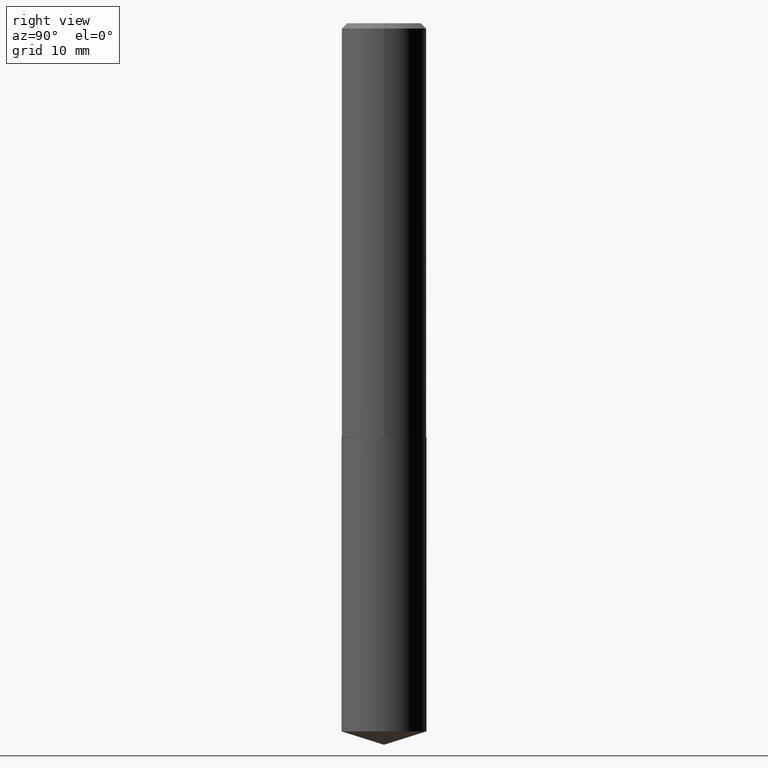
[diagram: clean part render]
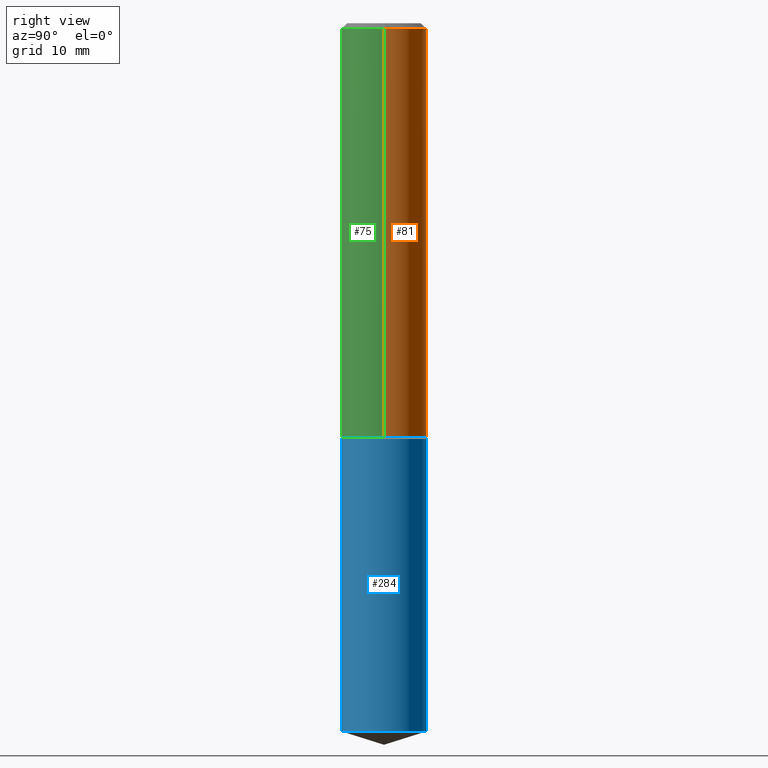
[diagram: same view with three faces highlighted in distinct colors, each labeled with its STEP entity id]
A machine part, right view with three faces highlighted in distinct colors.
Their STEP definitions:

[orange] entity #81 — the highlighted cylindrical surface (partial cylindrical patch) has radius 6.35 mm, axis along (-0, 0, 1).
#5 = CARTESIAN_POINT ( 'NONE',  ( 0.000000000000000000, 0.000000000000000000, 0.000000000000000000 ) ) ;
#10 = AXIS2_PLACEMENT_3D ( 'NONE', #13, #378, #164 ) ;
#13 = CARTESIAN_POINT ( 'NONE',  ( 5.960830215076271576E-29, -8.510485763430168319E-15, -2.437500000000000444 ) ) ;
#25 = LINE ( 'NONE', #146, #110 ) ;
#26 = EDGE_LOOP ( 'NONE', ( #159, #253, #141, #387 ) ) ;
#27 = CARTESIAN_POINT ( 'NONE',  ( -0.2500000000000002776, -6.734128924029917066E-15, -2.437500000000000444 ) ) ;
#30 = DIRECTION ( 'NONE',  ( -2.445468806185136597E-29, 3.491481338843145583E-15, 1.000000000000000000 ) ) ;
#53 = VERTEX_POINT ( 'NONE', #304 ) ;
#54 = EDGE_CURVE ( 'NONE', #53, #143, #25, .T. ) ;
#78 = VERTEX_POINT ( 'NONE', #27 ) ;
#81 = ADVANCED_FACE ( 'NONE', ( #118 ), #185, .T. ) ;
#110 = VECTOR ( 'NONE', #389, 39.37007874015748143 ) ;
#118 = FACE_OUTER_BOUND ( 'NONE', #26, .T. ) ;
#141 = ORIENTED_EDGE ( 'NONE', *, *, #169, .F. ) ;
#143 = VERTEX_POINT ( 'NONE', #148 ) ;
#146 = CARTESIAN_POINT ( 'NONE',  ( 0.2500000000000001110, -1.745740669421567664E-15, 1.219044193948984649E-29 ) ) ;
#148 = CARTESIAN_POINT ( 'NONE',  ( 0.2500000000000000000, -1.854849461260415778E-15, -0.03125000000000021511 ) ) ;
#154 = AXIS2_PLACEMENT_3D ( 'NONE', #155, #364, #337 ) ;
#155 = CARTESIAN_POINT ( 'NONE',  ( 7.642090019328604414E-31, -1.091087918388490513E-16, -0.03125000000000021511 ) ) ;
#159 = ORIENTED_EDGE ( 'NONE', *, *, #353, .T. ) ;
#164 = DIRECTION ( 'NONE',  ( 1.000000000000000000, -6.982962677686266711E-15, 0.000000000000000000 ) ) ;
#166 = AXIS2_PLACEMENT_3D ( 'NONE', #5, #30, #187 ) ;
#169 = EDGE_CURVE ( 'NONE', #143, #285, #385, .T. ) ;
#183 = CIRCLE ( 'NONE', #10, 0.2500000000000002776 ) ;
#185 = CYLINDRICAL_SURFACE ( 'NONE', #166, 0.2500000000000001110 ) ;
#187 = DIRECTION ( 'NONE',  ( 1.000000000000000000, -6.982962677686267499E-15, 4.876176775795936353E-29 ) ) ;
#216 = VECTOR ( 'NONE', #287, 39.37007874015748143 ) ;
#253 = ORIENTED_EDGE ( 'NONE', *, *, #274, .T. ) ;
#274 = EDGE_CURVE ( 'NONE', #78, #285, #313, .T. ) ;
#285 = VERTEX_POINT ( 'NONE', #371 ) ;
#287 = DIRECTION ( 'NONE',  ( -2.445468806185136877E-29, 3.491481338843145188E-15, 1.000000000000000000 ) ) ;
#291 = CARTESIAN_POINT ( 'NONE',  ( -0.2500000000000001110, 1.776356839400251254E-15, -1.229733772563727146E-29 ) ) ;
#304 = CARTESIAN_POINT ( 'NONE',  ( 0.2500000000000002776, -1.025622643285173815E-14, -2.437500000000000444 ) ) ;
#313 = LINE ( 'NONE', #291, #216 ) ;
#337 = DIRECTION ( 'NONE',  ( 1.000000000000000000, -6.982962677686266711E-15, 0.000000000000000000 ) ) ;
#353 = EDGE_CURVE ( 'NONE', #53, #78, #183, .T. ) ;
#364 = DIRECTION ( 'NONE',  ( -2.445468806185136597E-29, 3.491481338843145583E-15, 1.000000000000000000 ) ) ;
#371 = CARTESIAN_POINT ( 'NONE',  ( -0.2500000000000000000, -2.533440438234257062E-15, -0.03125000000000021511 ) ) ;
#378 = DIRECTION ( 'NONE',  ( -2.445468806185136597E-29, 3.491481338843145583E-15, 1.000000000000000000 ) ) ;
#385 = CIRCLE ( 'NONE', #154, 0.2500000000000000000 ) ;
#387 = ORIENTED_EDGE ( 'NONE', *, *, #54, .F. ) ;
#389 = DIRECTION ( 'NONE',  ( -2.445468806185136877E-29, 3.491481338843145188E-15, 1.000000000000000000 ) ) ;

[blue] entity #284 — the highlighted cylindrical surface (partial cylindrical patch) has radius 6.35 mm, axis along (-0, 0, 1).
#2 = DIRECTION ( 'NONE',  ( -2.445728055791702140E-29, 3.491110078650972544E-15, 1.000000000000000000 ) ) ;
#18 = EDGE_LOOP ( 'NONE', ( #73, #115, #251, #113 ) ) ;
#22 = AXIS2_PLACEMENT_3D ( 'NONE', #153, #276, #309 ) ;
#28 = VECTOR ( 'NONE', #2, 39.37007874015748143 ) ;
#31 = LINE ( 'NONE', #57, #28 ) ;
#46 = VERTEX_POINT ( 'NONE', #52 ) ;
#52 = CARTESIAN_POINT ( 'NONE',  ( -1.745740669421464126E-15, -0.2500000000000144884, -4.171175302780253169 ) ) ;
#57 = CARTESIAN_POINT ( 'NONE',  ( -1.745740669421506724E-15, -0.2500000000000084932, -2.437999999999999279 ) ) ;
#70 = FACE_OUTER_BOUND ( 'NONE', #18, .T. ) ;
#73 = ORIENTED_EDGE ( 'NONE', *, *, #207, .T. ) ;
#91 = AXIS2_PLACEMENT_3D ( 'NONE', #198, #248, #125 ) ;
#113 = ORIENTED_EDGE ( 'NONE', *, *, #152, .F. ) ;
#115 = ORIENTED_EDGE ( 'NONE', *, *, #126, .T. ) ;
#119 = CARTESIAN_POINT ( 'NONE',  ( 1.776356839400310024E-15, 0.2499999999999915068, -2.438000000000001055 ) ) ;
#125 = DIRECTION ( 'NONE',  ( -6.982962677686265922E-15, -1.000000000000000000, 3.278217592397115862E-15 ) ) ;
#126 = EDGE_CURVE ( 'NONE', #292, #390, #243, .T. ) ;
#128 = CARTESIAN_POINT ( 'NONE',  ( 1.776356839400351439E-15, 0.2499999999999853728, -4.171175302780255834 ) ) ;
#136 = VECTOR ( 'NONE', #242, 39.37007874015748143 ) ;
#152 = EDGE_CURVE ( 'NONE', #46, #205, #31, .T. ) ;
#153 = CARTESIAN_POINT ( 'NONE',  ( 1.020092841309431033E-28, -1.456293727170468703E-14, -4.171175302780254057 ) ) ;
#198 = CARTESIAN_POINT ( 'NONE',  ( 5.962052949479363256E-29, -8.512231504099589034E-15, -2.438000000000000167 ) ) ;
#205 = VERTEX_POINT ( 'NONE', #218 ) ;
#207 = EDGE_CURVE ( 'NONE', #46, #292, #365, .T. ) ;
#214 = DIRECTION ( 'NONE',  ( -2.445728055791702140E-29, 3.491110078650972544E-15, 1.000000000000000000 ) ) ;
#218 = CARTESIAN_POINT ( 'NONE',  ( -1.745740669421506724E-15, -0.2500000000000084932, -2.437999999999999723 ) ) ;
#220 = EDGE_CURVE ( 'NONE', #205, #390, #222, .T. ) ;
#222 = CIRCLE ( 'NONE', #372, 0.2500000000000000000 ) ;
#242 = DIRECTION ( 'NONE',  ( -2.445728055791702140E-29, 3.491110078650972544E-15, 1.000000000000000000 ) ) ;
#243 = LINE ( 'NONE', #119, #136 ) ;
#248 = DIRECTION ( 'NONE',  ( -2.445728055791702140E-29, 3.491110078650972544E-15, 1.000000000000000000 ) ) ;
#250 = CYLINDRICAL_SURFACE ( 'NONE', #91, 0.2500000000000000000 ) ;
#251 = ORIENTED_EDGE ( 'NONE', *, *, #220, .F. ) ;
#276 = DIRECTION ( 'NONE',  ( -2.445728055791702140E-29, 3.491110078650972544E-15, 1.000000000000000000 ) ) ;
#283 = CARTESIAN_POINT ( 'NONE',  ( 1.776356839400352622E-15, 0.2499999999999915068, -2.438000000000001055 ) ) ;
#284 = ADVANCED_FACE ( 'NONE', ( #70 ), #250, .T. ) ;
#292 = VERTEX_POINT ( 'NONE', #128 ) ;
#307 = CARTESIAN_POINT ( 'NONE',  ( 5.962052949479364377E-29, -8.512231504099590611E-15, -2.438000000000000167 ) ) ;
#309 = DIRECTION ( 'NONE',  ( -6.982962677686265922E-15, -1.000000000000000000, 4.370956789862821150E-15 ) ) ;
#339 = DIRECTION ( 'NONE',  ( -6.982962677686265922E-15, -1.000000000000000000, 3.278217592397115862E-15 ) ) ;
#365 = CIRCLE ( 'NONE', #22, 0.2500000000000000000 ) ;
#372 = AXIS2_PLACEMENT_3D ( 'NONE', #307, #214, #339 ) ;
#390 = VERTEX_POINT ( 'NONE', #283 ) ;

[green] entity #75 — the highlighted cylindrical surface (partial cylindrical patch) has radius 6.35 mm, axis along (-0, 0, 1).
#3 = DIRECTION ( 'NONE',  ( -2.445468806185136597E-29, 3.491481338843145583E-15, 1.000000000000000000 ) ) ;
#25 = LINE ( 'NONE', #146, #110 ) ;
#27 = CARTESIAN_POINT ( 'NONE',  ( -0.2500000000000002776, -6.734128924029917066E-15, -2.437500000000000444 ) ) ;
#36 = CARTESIAN_POINT ( 'NONE',  ( 7.642090019328604414E-31, -1.091087918388490513E-16, -0.03125000000000021511 ) ) ;
#53 = VERTEX_POINT ( 'NONE', #304 ) ;
#54 = EDGE_CURVE ( 'NONE', #53, #143, #25, .T. ) ;
#75 = ADVANCED_FACE ( 'NONE', ( #89 ), #93, .T. ) ;
#78 = VERTEX_POINT ( 'NONE', #27 ) ;
#88 = EDGE_CURVE ( 'NONE', #285, #143, #273, .T. ) ;
#89 = FACE_OUTER_BOUND ( 'NONE', #380, .T. ) ;
#93 = CYLINDRICAL_SURFACE ( 'NONE', #238, 0.2500000000000001110 ) ;
#100 = ORIENTED_EDGE ( 'NONE', *, *, #274, .F. ) ;
#110 = VECTOR ( 'NONE', #389, 39.37007874015748143 ) ;
#116 = ORIENTED_EDGE ( 'NONE', *, *, #122, .T. ) ;
#117 = AXIS2_PLACEMENT_3D ( 'NONE', #151, #368, #186 ) ;
#122 = EDGE_CURVE ( 'NONE', #78, #53, #336, .T. ) ;
#143 = VERTEX_POINT ( 'NONE', #148 ) ;
#146 = CARTESIAN_POINT ( 'NONE',  ( 0.2500000000000001110, -1.745740669421567664E-15, 1.219044193948984649E-29 ) ) ;
#148 = CARTESIAN_POINT ( 'NONE',  ( 0.2500000000000000000, -1.854849461260415778E-15, -0.03125000000000021511 ) ) ;
#150 = DIRECTION ( 'NONE',  ( 1.000000000000000000, -6.982962677686267499E-15, 4.876176775795936353E-29 ) ) ;
#151 = CARTESIAN_POINT ( 'NONE',  ( 5.960830215076271576E-29, -8.510485763430168319E-15, -2.437500000000000444 ) ) ;
#181 = CARTESIAN_POINT ( 'NONE',  ( 0.000000000000000000, 0.000000000000000000, 0.000000000000000000 ) ) ;
#186 = DIRECTION ( 'NONE',  ( 1.000000000000000000, -6.982962677686266711E-15, 0.000000000000000000 ) ) ;
#188 = AXIS2_PLACEMENT_3D ( 'NONE', #36, #279, #281 ) ;
#212 = ORIENTED_EDGE ( 'NONE', *, *, #54, .T. ) ;
#216 = VECTOR ( 'NONE', #287, 39.37007874015748143 ) ;
#238 = AXIS2_PLACEMENT_3D ( 'NONE', #181, #3, #150 ) ;
#261 = ORIENTED_EDGE ( 'NONE', *, *, #88, .F. ) ;
#273 = CIRCLE ( 'NONE', #188, 0.2500000000000000000 ) ;
#274 = EDGE_CURVE ( 'NONE', #78, #285, #313, .T. ) ;
#279 = DIRECTION ( 'NONE',  ( -2.445468806185136597E-29, 3.491481338843145583E-15, 1.000000000000000000 ) ) ;
#281 = DIRECTION ( 'NONE',  ( 1.000000000000000000, -6.982962677686266711E-15, 0.000000000000000000 ) ) ;
#285 = VERTEX_POINT ( 'NONE', #371 ) ;
#287 = DIRECTION ( 'NONE',  ( -2.445468806185136877E-29, 3.491481338843145188E-15, 1.000000000000000000 ) ) ;
#291 = CARTESIAN_POINT ( 'NONE',  ( -0.2500000000000001110, 1.776356839400251254E-15, -1.229733772563727146E-29 ) ) ;
#304 = CARTESIAN_POINT ( 'NONE',  ( 0.2500000000000002776, -1.025622643285173815E-14, -2.437500000000000444 ) ) ;
#313 = LINE ( 'NONE', #291, #216 ) ;
#336 = CIRCLE ( 'NONE', #117, 0.2500000000000002776 ) ;
#368 = DIRECTION ( 'NONE',  ( -2.445468806185136597E-29, 3.491481338843145583E-15, 1.000000000000000000 ) ) ;
#371 = CARTESIAN_POINT ( 'NONE',  ( -0.2500000000000000000, -2.533440438234257062E-15, -0.03125000000000021511 ) ) ;
#380 = EDGE_LOOP ( 'NONE', ( #100, #116, #212, #261 ) ) ;
#389 = DIRECTION ( 'NONE',  ( -2.445468806185136877E-29, 3.491481338843145188E-15, 1.000000000000000000 ) ) ;